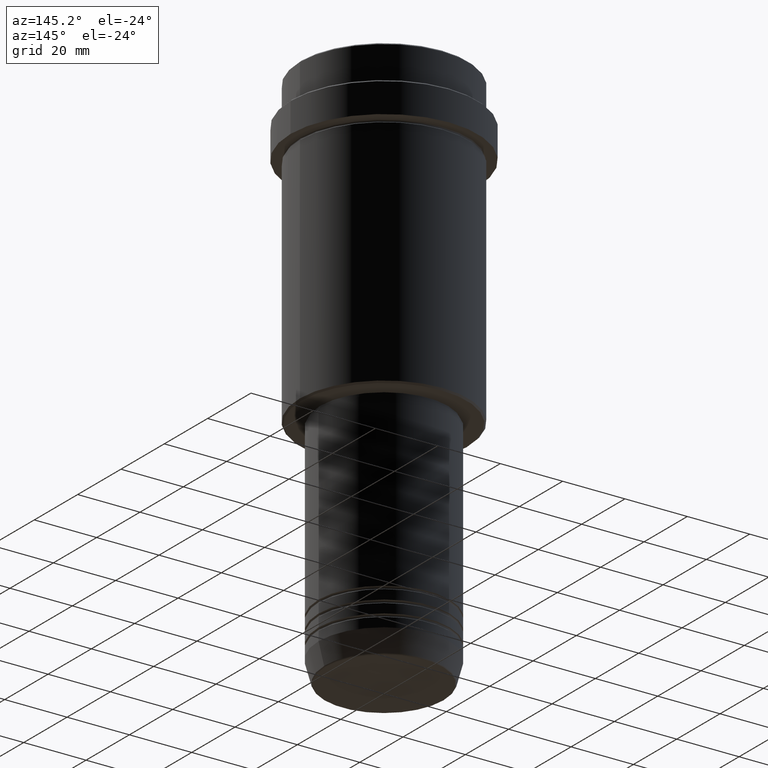
[diagram: clean part render]
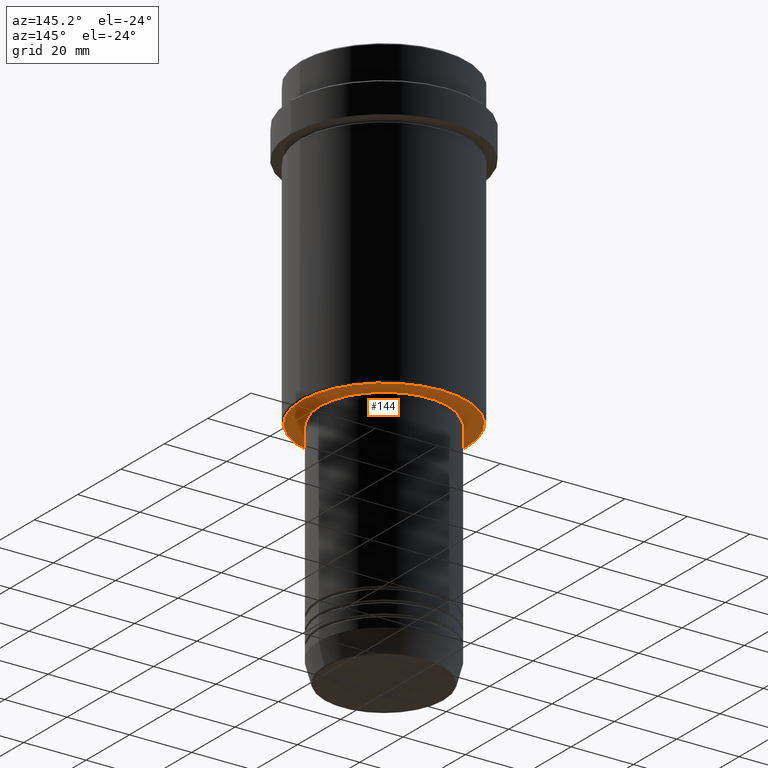
[diagram: same view with one face highlighted and labeled with its STEP entity id]
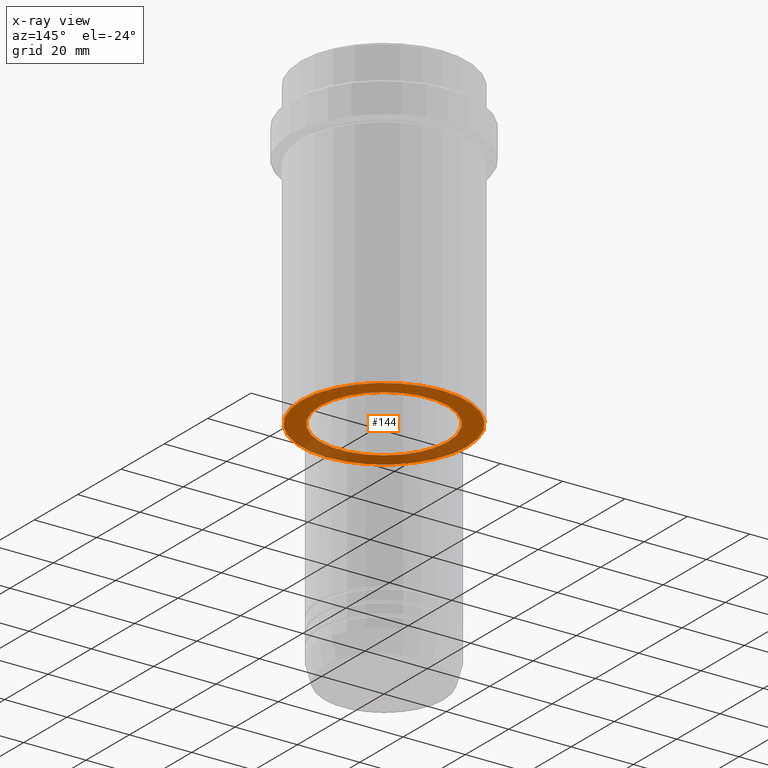
[diagram: x-ray of the same camera — body ghosted, the highlighted face saturated]
A machine part, auxiliary view. The second image highlights one B-rep face of the part: STEP entity #144.
The next image is the same camera in x-ray: the body ghosted, the highlighted face saturated — about 32% of this face is hidden behind the body in this view.
In plain terms, the highlighted planar face has unit normal (0, 0, -1).
Its self-contained STEP definition (entity closure, byte-faithful):
#1 = CARTESIAN_POINT ( 'NONE',  ( 0.000000000000000000, 0.000000000000000000, -98.00000000000000000 ) ) ;
#96 = CARTESIAN_POINT ( 'NONE',  ( -26.49999999999996803, 3.275930187719167580E-15, -98.00000000000000000 ) ) ;
#140 = CARTESIAN_POINT ( 'NONE',  ( 0.000000000000000000, 0.000000000000000000, -98.00000000000000000 ) ) ;
#144 = ADVANCED_FACE ( 'NONE', ( #414, #435 ), #552, .T. ) ;
#195 = DIRECTION ( 'NONE',  ( 1.000000000000000000, 0.000000000000000000, 0.000000000000000000 ) ) ;
#216 = VERTEX_POINT ( 'NONE', #96 ) ;
#222 = AXIS2_PLACEMENT_3D ( 'NONE', #1394, #318, #642 ) ;
#251 = ORIENTED_EDGE ( 'NONE', *, *, #759, .T. ) ;
#278 = EDGE_CURVE ( 'NONE', #635, #1217, #1395, .T. ) ;
#313 = CARTESIAN_POINT ( 'NONE',  ( 0.000000000000000000, 27.00000000000000000, -98.00000000000000000 ) ) ;
#318 = DIRECTION ( 'NONE',  ( 0.000000000000000000, 0.000000000000000000, -1.000000000000000000 ) ) ;
#363 = DIRECTION ( 'NONE',  ( -1.000000000000000000, 0.000000000000000000, 0.000000000000000000 ) ) ;
#414 = FACE_OUTER_BOUND ( 'NONE', #851, .T. ) ;
#435 = FACE_BOUND ( 'NONE', #1020, .T. ) ;
#448 = DIRECTION ( 'NONE',  ( -0.000000000000000000, -0.000000000000000000, 1.000000000000000000 ) ) ;
#521 = VERTEX_POINT ( 'NONE', #823 ) ;
#552 = PLANE ( 'NONE',  #647 ) ;
#625 = CIRCLE ( 'NONE', #222, 26.49999999999996803 ) ;
#631 = CIRCLE ( 'NONE', #650, 26.49999999999996803 ) ;
#635 = VERTEX_POINT ( 'NONE', #1112 ) ;
#642 = DIRECTION ( 'NONE',  ( -1.000000000000000000, 0.000000000000000000, 0.000000000000000000 ) ) ;
#647 = AXIS2_PLACEMENT_3D ( 'NONE', #313, #842, #654 ) ;
#650 = AXIS2_PLACEMENT_3D ( 'NONE', #140, #1001, #363 ) ;
#654 = DIRECTION ( 'NONE',  ( -1.000000000000000000, 0.000000000000000000, -0.000000000000000000 ) ) ;
#700 = DIRECTION ( 'NONE',  ( 1.000000000000000000, 0.000000000000000000, 0.000000000000000000 ) ) ;
#757 = ORIENTED_EDGE ( 'NONE', *, *, #1057, .T. ) ;
#759 = EDGE_CURVE ( 'NONE', #216, #521, #631, .T. ) ;
#791 = AXIS2_PLACEMENT_3D ( 'NONE', #820, #1265, #195 ) ;
#802 = ORIENTED_EDGE ( 'NONE', *, *, #1138, .T. ) ;
#820 = CARTESIAN_POINT ( 'NONE',  ( 0.000000000000000000, 0.000000000000000000, -98.00000000000000000 ) ) ;
#823 = CARTESIAN_POINT ( 'NONE',  ( 26.49999999999996803, 0.000000000000000000, -98.00000000000000000 ) ) ;
#842 = DIRECTION ( 'NONE',  ( 0.000000000000000000, 0.000000000000000000, -1.000000000000000000 ) ) ;
#851 = EDGE_LOOP ( 'NONE', ( #757, #251 ) ) ;
#898 = CARTESIAN_POINT ( 'NONE',  ( -20.50000000000000000, 2.510525938252074481E-15, -98.00000000000000000 ) ) ;
#1001 = DIRECTION ( 'NONE',  ( 0.000000000000000000, 0.000000000000000000, -1.000000000000000000 ) ) ;
#1020 = EDGE_LOOP ( 'NONE', ( #1179, #802 ) ) ;
#1047 = CIRCLE ( 'NONE', #791, 20.50000000000000000 ) ;
#1057 = EDGE_CURVE ( 'NONE', #521, #216, #625, .T. ) ;
#1081 = AXIS2_PLACEMENT_3D ( 'NONE', #1, #448, #700 ) ;
#1112 = CARTESIAN_POINT ( 'NONE',  ( 20.50000000000000000, 0.000000000000000000, -98.00000000000000000 ) ) ;
#1138 = EDGE_CURVE ( 'NONE', #1217, #635, #1047, .T. ) ;
#1179 = ORIENTED_EDGE ( 'NONE', *, *, #278, .T. ) ;
#1217 = VERTEX_POINT ( 'NONE', #898 ) ;
#1265 = DIRECTION ( 'NONE',  ( -0.000000000000000000, -0.000000000000000000, 1.000000000000000000 ) ) ;
#1394 = CARTESIAN_POINT ( 'NONE',  ( 0.000000000000000000, 0.000000000000000000, -98.00000000000000000 ) ) ;
#1395 = CIRCLE ( 'NONE', #1081, 20.50000000000000000 ) ;